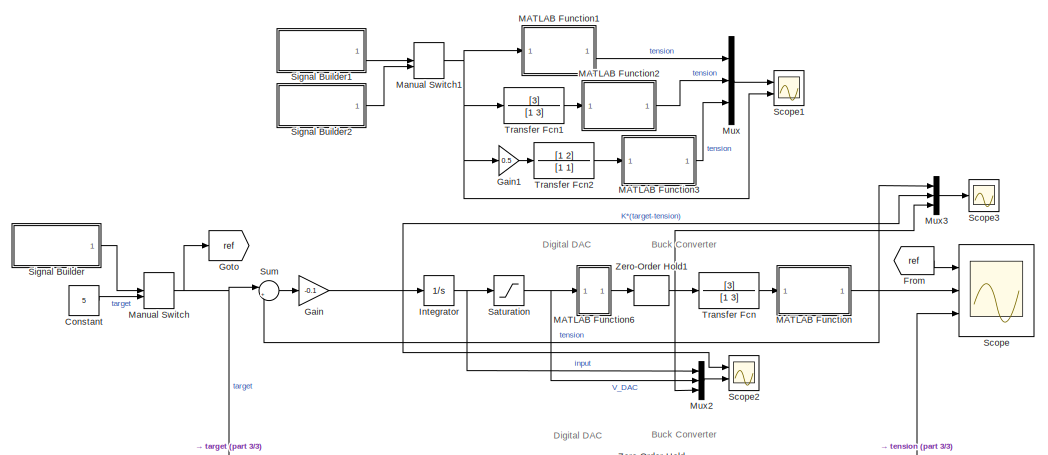
[diagram: root canvas - part 1/3, top left region]
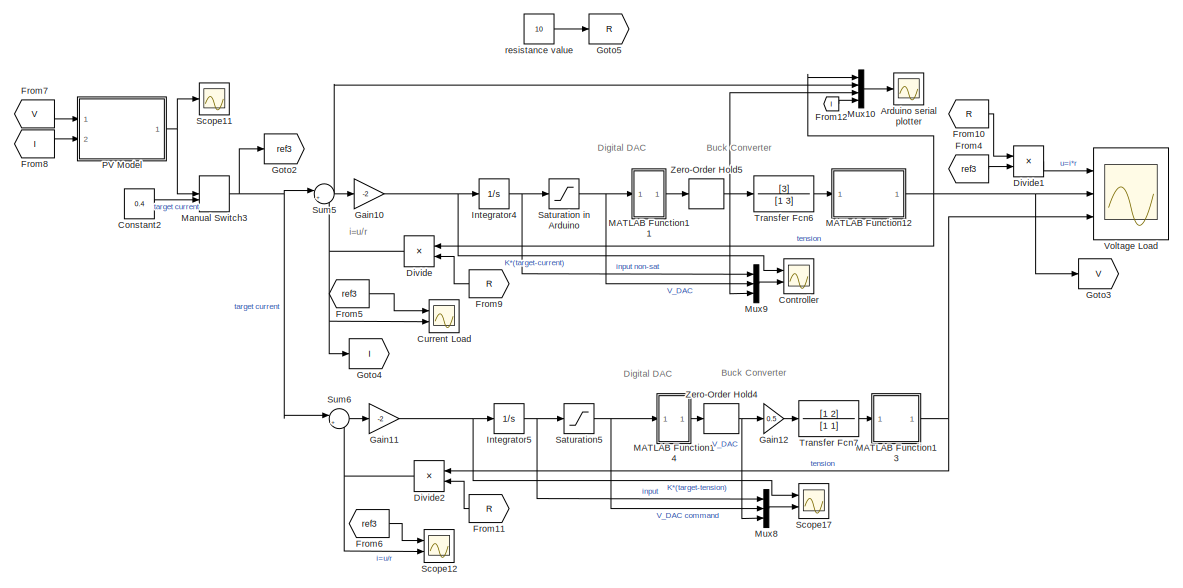
[diagram: root canvas - part 2/3, middle right region]
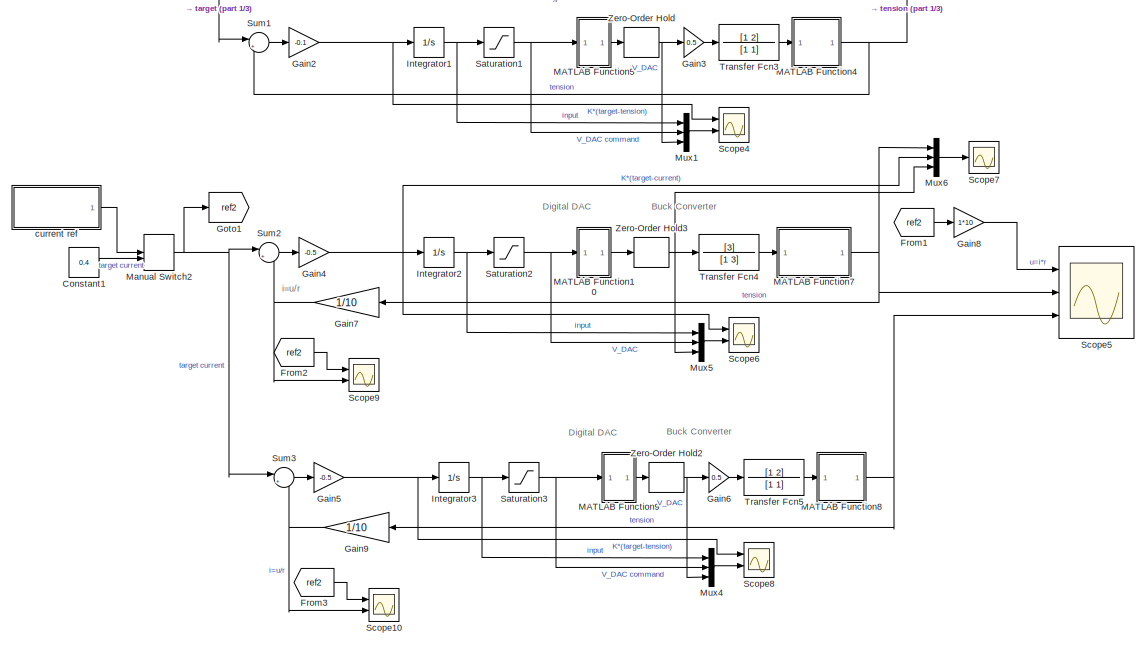
[diagram: root canvas - part 3/3, bottom left region]
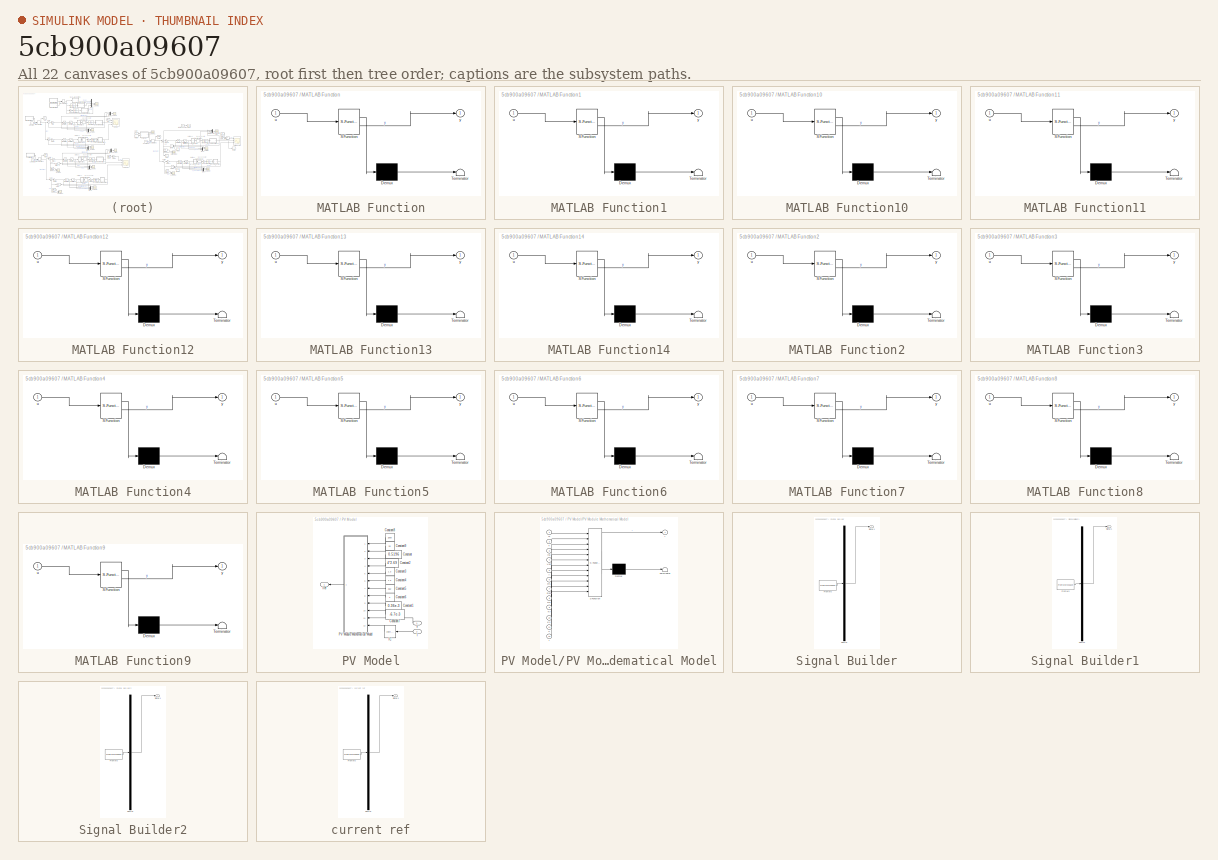
[diagram: thumbnail index - all 22 canvases of the model, root first then tree order]
MODEL slx_5cb900a09607
KIND model
CONFIG AbsTol = auto
CONFIG EnableMultiTasking = off
CONFIG FixedStep = auto
CONFIG MaxStep = auto
CONFIG MinStep = auto
CONFIG RelTol = 1e-3
CONFIG SampleTimeConstraint = Unconstrained
CONFIG SolverName = VariableStepAuto
CONFIG StartTime = 0.0
CONFIG StopTime = 100.0
BLOCK [Scope] Arduino serial plotter
  Floating = off
  NumInputPorts = 1
  Ports = [1]
  ScopeSpecificationString = Simulink.scopes.TimeScopeBlockCfg('CurrentConfiguration', extmgr.ConfigurationSet(extmgr.Configuration('Core','General UI',true),extmgr.Configuration('Core','Source UI',true),extmgr.Configuration('Sources','WiredSimulink',true,'DataLoggingVariableName','ScopeData12'),extmgr.Configuration('Visuals','Time Domain',true,'SerializedDisplays',{struct('MinYLimReal','-3.8','MaxYLimReal','18.2','YLabelReal...<+1877ch>
BLOCK [Constant] Constant
  Value = 5
BLOCK [Constant] Constant1
  Value = 0.4
BLOCK [Constant] Constant2
  Value = 0.4
BLOCK [Scope] Controller
  Floating = off
  NumInputPorts = 2
  Ports = [2]
  ScopeSpecificationString = Simulink.scopes.TimeScopeBlockCfg('CurrentConfiguration', extmgr.ConfigurationSet(extmgr.Configuration('Core','General UI',true),extmgr.Configuration('Core','Source UI',true),extmgr.Configuration('Sources','WiredSimulink',true,'DataLoggingVariableName','ScopeData11'),extmgr.Configuration('Visuals','Time Domain',true,'SerializedDisplays',{struct('MinYLimReal','-0.1','MaxYLimReal','0.9','YLabelReal'...<+2229ch>
BLOCK [Scope] Current Load
  Floating = off
  NumInputPorts = 2
  Ports = [2]
  ScopeSpecificationString = Simulink.scopes.TimeScopeBlockCfg('CurrentConfiguration', extmgr.ConfigurationSet(extmgr.Configuration('Core','General UI',true),extmgr.Configuration('Core','Source UI',true),extmgr.Configuration('Sources','WiredSimulink',true,'DataLoggingVariableName','ScopeData14'),extmgr.Configuration('Visuals','Time Domain',true,'SerializedDisplays',{struct('MinYLimReal','0.50286','MaxYLimReal','0.50479','YLab...<+1462ch>
BLOCK [Product] Divide
  Inputs = */
  NameLocation = top
  Ports = [2, 1]
BLOCK [Product] Divide1
  Inputs = **
  Ports = [2, 1]
BLOCK [Product] Divide2
  Inputs = */
  NameLocation = top
  Ports = [2, 1]
BLOCK [From] From
  GotoTag = ref
BLOCK [From] From1
  GotoTag = ref2
BLOCK [From] From10
  GotoTag = R
BLOCK [From] From11
  GotoTag = R
  NameLocation = top
BLOCK [From] From12
  GotoTag = I
BLOCK [From] From2
  GotoTag = ref2
BLOCK [From] From3
  GotoTag = ref2
BLOCK [From] From4
  GotoTag = ref3
BLOCK [From] From5
  GotoTag = ref3
BLOCK [From] From6
  GotoTag = ref3
BLOCK [From] From7
  GotoTag = V
BLOCK [From] From8
  GotoTag = I
BLOCK [From] From9
  GotoTag = R
  NameLocation = top
BLOCK [Gain] Gain
  Gain = -0.1
BLOCK [Gain] Gain1
  Gain = 0.5
BLOCK [Gain] Gain10
  Gain = -2
BLOCK [Gain] Gain11
  Gain = -2
BLOCK [Gain] Gain12
  Gain = 0.5
BLOCK [Gain] Gain2
  Gain = -0.1
BLOCK [Gain] Gain3
  Gain = 0.5
BLOCK [Gain] Gain4
  Gain = -0.5
BLOCK [Gain] Gain5
  Gain = -0.5
BLOCK [Gain] Gain6
  Gain = 0.5
BLOCK [Gain] Gain7
  Gain = 1/10
  NameLocation = top
BLOCK [Gain] Gain8
  Gain = 1*10
BLOCK [Gain] Gain9
  Gain = 1/10
  NameLocation = top
BLOCK [Goto] Goto
  GotoTag = ref
BLOCK [Goto] Goto1
  GotoTag = ref2
BLOCK [Goto] Goto2
  GotoTag = ref3
BLOCK [Goto] Goto3
  GotoTag = V
BLOCK [Goto] Goto4
  GotoTag = I
BLOCK [Goto] Goto5
  GotoTag = R
BLOCK [Integrator] Integrator
  Ports = [1, 1]
BLOCK [Integrator] Integrator1
  Ports = [1, 1]
BLOCK [Integrator] Integrator2
  Ports = [1, 1]
BLOCK [Integrator] Integrator3
  Ports = [1, 1]
BLOCK [Integrator] Integrator4
  Ports = [1, 1]
BLOCK [Integrator] Integrator5
  Ports = [1, 1]
BLOCK [SubSystem] MATLAB Function
  ErrorFcn = Stateflow.Translate.translate
  PermitHierarchicalResolution = ExplicitOnly
  Ports = [1, 1]
  RequestExecContextInheritance = off
  SFBlockType = MATLAB Function
  TreatAsAtomicUnit = on
BLOCK [Demux] MATLAB Function/ Demux 
  Outputs = 1
  Ports = [1, 1]
BLOCK [S-Function] MATLAB Function/ SFunction 
  EnableBusSupport = on
  FunctionName = sf_sfun
  PortCounts = [1 2]
  Ports = [1, 2]
  SFcnIsStateOwnerBlock = off
  SFunctionDeploymentMode = off
  Tag = Stateflow S-Function 2
BLOCK [Terminator] MATLAB Function/ Terminator 
BLOCK [Inport] MATLAB Function/u
BLOCK [Outport] MATLAB Function/y
BLOCK [SubSystem] MATLAB Function1
  ErrorFcn = Stateflow.Translate.translate
  PermitHierarchicalResolution = ExplicitOnly
  Ports = [1, 1]
  RequestExecContextInheritance = off
  SFBlockType = MATLAB Function
  TreatAsAtomicUnit = on
BLOCK [Demux] MATLAB Function1/ Demux 
  Outputs = 1
  Ports = [1, 1]
BLOCK [S-Function] MATLAB Function1/ SFunction 
  EnableBusSupport = on
  FunctionName = sf_sfun
  PortCounts = [1 2]
  Ports = [1, 2]
  SFcnIsStateOwnerBlock = off
  SFunctionDeploymentMode = off
  Tag = Stateflow S-Function 1
BLOCK [Terminator] MATLAB Function1/ Terminator 
BLOCK [Inport] MATLAB Function1/u
BLOCK [Outport] MATLAB Function1/y
BLOCK [SubSystem] MATLAB Function10
  ErrorFcn = Stateflow.Translate.translate
  PermitHierarchicalResolution = ExplicitOnly
  Ports = [1, 1]
  RequestExecContextInheritance = off
  SFBlockType = MATLAB Function
  TreatAsAtomicUnit = on
BLOCK [Demux] MATLAB Function10/ Demux 
  Outputs = 1
  Ports = [1, 1]
BLOCK [S-Function] MATLAB Function10/ SFunction 
  EnableBusSupport = on
  FunctionName = sf_sfun
  PortCounts = [1 2]
  Ports = [1, 2]
  SFcnIsStateOwnerBlock = off
  SFunctionDeploymentMode = off
  Tag = Stateflow S-Function 8
BLOCK [Terminator] MATLAB Function10/ Terminator 
BLOCK [Inport] MATLAB Function10/u
BLOCK [Outport] MATLAB Function10/y
BLOCK [SubSystem] MATLAB Function11
  ErrorFcn = Stateflow.Translate.translate
  PermitHierarchicalResolution = ExplicitOnly
  Ports = [1, 1]
  RequestExecContextInheritance = off
  SFBlockType = MATLAB Function
  TreatAsAtomicUnit = on
BLOCK [Demux] MATLAB Function11/ Demux 
  Outputs = 1
  Ports = [1, 1]
BLOCK [S-Function] MATLAB Function11/ SFunction 
  EnableBusSupport = on
  FunctionName = sf_sfun
  PortCounts = [1 2]
  Ports = [1, 2]
  SFcnIsStateOwnerBlock = off
  SFunctionDeploymentMode = off
  Tag = Stateflow S-Function 13
BLOCK [Terminator] MATLAB Function11/ Terminator 
BLOCK [Inport] MATLAB Function11/u
BLOCK [Outport] MATLAB Function11/y
BLOCK [SubSystem] MATLAB Function12
  ErrorFcn = Stateflow.Translate.translate
  PermitHierarchicalResolution = ExplicitOnly
  Ports = [1, 1]
  RequestExecContextInheritance = off
  SFBlockType = MATLAB Function
  TreatAsAtomicUnit = on
BLOCK [Demux] MATLAB Function12/ Demux 
  Outputs = 1
  Ports = [1, 1]
BLOCK [S-Function] MATLAB Function12/ SFunction 
  EnableBusSupport = on
  FunctionName = sf_sfun
  PortCounts = [1 2]
  Ports = [1, 2]
  SFcnIsStateOwnerBlock = off
  SFunctionDeploymentMode = off
  Tag = Stateflow S-Function 14
BLOCK [Terminator] MATLAB Function12/ Terminator 
BLOCK [Inport] MATLAB Function12/u
BLOCK [Outport] MATLAB Function12/y
BLOCK [SubSystem] MATLAB Function13
  ErrorFcn = Stateflow.Translate.translate
  PermitHierarchicalResolution = ExplicitOnly
  Ports = [1, 1]
  RequestExecContextInheritance = off
  SFBlockType = MATLAB Function
  TreatAsAtomicUnit = on
BLOCK [Demux] MATLAB Function13/ Demux 
  Outputs = 1
  Ports = [1, 1]
BLOCK [S-Function] MATLAB Function13/ SFunction 
  EnableBusSupport = on
  FunctionName = sf_sfun
  PortCounts = [1 2]
  Ports = [1, 2]
  SFcnIsStateOwnerBlock = off
  SFunctionDeploymentMode = off
  Tag = Stateflow S-Function 15
BLOCK [Terminator] MATLAB Function13/ Terminator 
BLOCK [Inport] MATLAB Function13/u
BLOCK [Outport] MATLAB Function13/y
BLOCK [SubSystem] MATLAB Function14
  ErrorFcn = Stateflow.Translate.translate
  PermitHierarchicalResolution = ExplicitOnly
  Ports = [1, 1]
  RequestExecContextInheritance = off
  SFBlockType = MATLAB Function
  TreatAsAtomicUnit = on
BLOCK [Demux] MATLAB Function14/ Demux 
  Outputs = 1
  Ports = [1, 1]
BLOCK [S-Function] MATLAB Function14/ SFunction 
  EnableBusSupport = on
  FunctionName = sf_sfun
  PortCounts = [1 2]
  Ports = [1, 2]
  SFcnIsStateOwnerBlock = off
  SFunctionDeploymentMode = off
  Tag = Stateflow S-Function 16
BLOCK [Terminator] MATLAB Function14/ Terminator 
BLOCK [Inport] MATLAB Function14/u
BLOCK [Outport] MATLAB Function14/y
BLOCK [SubSystem] MATLAB Function2
  ErrorFcn = Stateflow.Translate.translate
  PermitHierarchicalResolution = ExplicitOnly
  Ports = [1, 1]
  RequestExecContextInheritance = off
  SFBlockType = MATLAB Function
  TreatAsAtomicUnit = on
BLOCK [Demux] MATLAB Function2/ Demux 
  Outputs = 1
  Ports = [1, 1]
BLOCK [S-Function] MATLAB Function2/ SFunction 
  EnableBusSupport = on
  FunctionName = sf_sfun
  PortCounts = [1 2]
  Ports = [1, 2]
  SFcnIsStateOwnerBlock = off
  SFunctionDeploymentMode = off
  Tag = Stateflow S-Function 3
BLOCK [Terminator] MATLAB Function2/ Terminator 
BLOCK [Inport] MATLAB Function2/u
BLOCK [Outport] MATLAB Function2/y
BLOCK [SubSystem] MATLAB Function3
  ErrorFcn = Stateflow.Translate.translate
  PermitHierarchicalResolution = ExplicitOnly
  Ports = [1, 1]
  RequestExecContextInheritance = off
  SFBlockType = MATLAB Function
  TreatAsAtomicUnit = on
BLOCK [Demux] MATLAB Function3/ Demux 
  Outputs = 1
  Ports = [1, 1]
BLOCK [S-Function] MATLAB Function3/ SFunction 
  EnableBusSupport = on
  FunctionName = sf_sfun
  PortCounts = [1 2]
  Ports = [1, 2]
  SFcnIsStateOwnerBlock = off
  SFunctionDeploymentMode = off
  Tag = Stateflow S-Function 4
BLOCK [Terminator] MATLAB Function3/ Terminator 
BLOCK [Inport] MATLAB Function3/u
BLOCK [Outport] MATLAB Function3/y
BLOCK [SubSystem] MATLAB Function4
  ErrorFcn = Stateflow.Translate.translate
  PermitHierarchicalResolution = ExplicitOnly
  Ports = [1, 1]
  RequestExecContextInheritance = off
  SFBlockType = MATLAB Function
  TreatAsAtomicUnit = on
BLOCK [Demux] MATLAB Function4/ Demux 
  Outputs = 1
  Ports = [1, 1]
BLOCK [S-Function] MATLAB Function4/ SFunction 
  EnableBusSupport = on
  FunctionName = sf_sfun
  PortCounts = [1 2]
  Ports = [1, 2]
  SFcnIsStateOwnerBlock = off
  SFunctionDeploymentMode = off
  Tag = Stateflow S-Function 5
BLOCK [Terminator] MATLAB Function4/ Terminator 
BLOCK [Inport] MATLAB Function4/u
BLOCK [Outport] MATLAB Function4/y
BLOCK [SubSystem] MATLAB Function5
  ErrorFcn = Stateflow.Translate.translate
  PermitHierarchicalResolution = ExplicitOnly
  Ports = [1, 1]
  RequestExecContextInheritance = off
  SFBlockType = MATLAB Function
  TreatAsAtomicUnit = on
BLOCK [Demux] MATLAB Function5/ Demux 
  Outputs = 1
  Ports = [1, 1]
BLOCK [S-Function] MATLAB Function5/ SFunction 
  EnableBusSupport = on
  FunctionName = sf_sfun
  PortCounts = [1 2]
  Ports = [1, 2]
  SFcnIsStateOwnerBlock = off
  SFunctionDeploymentMode = off
  Tag = Stateflow S-Function 6
BLOCK [Terminator] MATLAB Function5/ Terminator 
BLOCK [Inport] MATLAB Function5/u
BLOCK [Outport] MATLAB Function5/y
BLOCK [SubSystem] MATLAB Function6
  ErrorFcn = Stateflow.Translate.translate
  PermitHierarchicalResolution = ExplicitOnly
  Ports = [1, 1]
  RequestExecContextInheritance = off
  SFBlockType = MATLAB Function
  TreatAsAtomicUnit = on
BLOCK [Demux] MATLAB Function6/ Demux 
  Outputs = 1
  Ports = [1, 1]
BLOCK [S-Function] MATLAB Function6/ SFunction 
  EnableBusSupport = on
  FunctionName = sf_sfun
  PortCounts = [1 2]
  Ports = [1, 2]
  SFcnIsStateOwnerBlock = off
  SFunctionDeploymentMode = off
  Tag = Stateflow S-Function 7
BLOCK [Terminator] MATLAB Function6/ Terminator 
BLOCK [Inport] MATLAB Function6/u
BLOCK [Outport] MATLAB Function6/y
BLOCK [SubSystem] MATLAB Function7
  ErrorFcn = Stateflow.Translate.translate
  PermitHierarchicalResolution = ExplicitOnly
  Ports = [1, 1]
  RequestExecContextInheritance = off
  SFBlockType = MATLAB Function
  TreatAsAtomicUnit = on
BLOCK [Demux] MATLAB Function7/ Demux 
  Outputs = 1
  Ports = [1, 1]
BLOCK [S-Function] MATLAB Function7/ SFunction 
  EnableBusSupport = on
  FunctionName = sf_sfun
  PortCounts = [1 2]
  Ports = [1, 2]
  SFcnIsStateOwnerBlock = off
  SFunctionDeploymentMode = off
  Tag = Stateflow S-Function 9
BLOCK [Terminator] MATLAB Function7/ Terminator 
BLOCK [Inport] MATLAB Function7/u
BLOCK [Outport] MATLAB Function7/y
BLOCK [SubSystem] MATLAB Function8
  ErrorFcn = Stateflow.Translate.translate
  PermitHierarchicalResolution = ExplicitOnly
  Ports = [1, 1]
  RequestExecContextInheritance = off
  SFBlockType = MATLAB Function
  TreatAsAtomicUnit = on
BLOCK [Demux] MATLAB Function8/ Demux 
  Outputs = 1
  Ports = [1, 1]
BLOCK [S-Function] MATLAB Function8/ SFunction 
  EnableBusSupport = on
  FunctionName = sf_sfun
  PortCounts = [1 2]
  Ports = [1, 2]
  SFcnIsStateOwnerBlock = off
  SFunctionDeploymentMode = off
  Tag = Stateflow S-Function 10
BLOCK [Terminator] MATLAB Function8/ Terminator 
BLOCK [Inport] MATLAB Function8/u
BLOCK [Outport] MATLAB Function8/y
BLOCK [SubSystem] MATLAB Function9
  ErrorFcn = Stateflow.Translate.translate
  PermitHierarchicalResolution = ExplicitOnly
  Ports = [1, 1]
  RequestExecContextInheritance = off
  SFBlockType = MATLAB Function
  TreatAsAtomicUnit = on
BLOCK [Demux] MATLAB Function9/ Demux 
  Outputs = 1
  Ports = [1, 1]
BLOCK [S-Function] MATLAB Function9/ SFunction 
  EnableBusSupport = on
  FunctionName = sf_sfun
  PortCounts = [1 2]
  Ports = [1, 2]
  SFcnIsStateOwnerBlock = off
  SFunctionDeploymentMode = off
  Tag = Stateflow S-Function 11
BLOCK [Terminator] MATLAB Function9/ Terminator 
BLOCK [Inport] MATLAB Function9/u
BLOCK [Outport] MATLAB Function9/y
BLOCK [ManualSwitch] Manual Switch
BLOCK [ManualSwitch] Manual Switch1
BLOCK [ManualSwitch] Manual Switch2
  CurrentSetting = 0
BLOCK [ManualSwitch] Manual Switch3
BLOCK [Mux] Mux
  DisplayOption = bar
  Inputs = 3
  Ports = [3, 1]
BLOCK [Mux] Mux1
  DisplayOption = bar
  Inputs = 3
  Ports = [3, 1]
BLOCK [Mux] Mux10
  DisplayOption = bar
  Ports = [4, 1]
BLOCK [Mux] Mux2
  DisplayOption = bar
  Inputs = 3
  Ports = [3, 1]
BLOCK [Mux] Mux3
  DisplayOption = bar
  Inputs = 3
  Ports = [3, 1]
BLOCK [Mux] Mux4
  DisplayOption = bar
  Inputs = 3
  Ports = [3, 1]
BLOCK [Mux] Mux5
  DisplayOption = bar
  Inputs = 3
  Ports = [3, 1]
BLOCK [Mux] Mux6
  DisplayOption = bar
  Inputs = 3
  Ports = [3, 1]
BLOCK [Mux] Mux8
  DisplayOption = bar
  Inputs = 3
  Ports = [3, 1]
BLOCK [Mux] Mux9
  DisplayOption = bar
  Inputs = 3
  Ports = [3, 1]
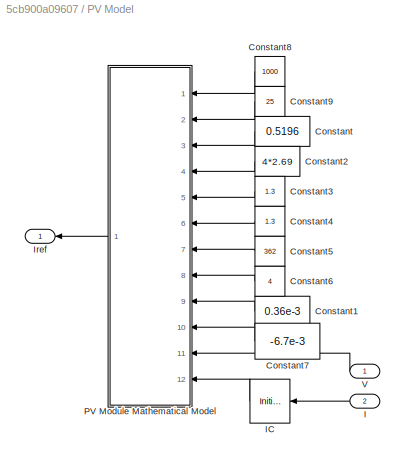
BLOCK [SubSystem] PV Model
  Ports = [2, 1]
  RequestExecContextInheritance = off
BLOCK [Constant] PV Model/Constant
  Value = 0.5196
BLOCK [Constant] PV Model/Constant1
  Value = 0.36e-3
BLOCK [Constant] PV Model/Constant2
  Value = 4*2.69
BLOCK [Constant] PV Model/Constant3
  Value = 1.3
BLOCK [Constant] PV Model/Constant4
  Value = 1.3
BLOCK [Constant] PV Model/Constant5
  Value = 362
BLOCK [Constant] PV Model/Constant6
  Value = 4
BLOCK [Constant] PV Model/Constant7
  Value = -6.7e-3
BLOCK [Constant] PV Model/Constant8
  Value = 1000
BLOCK [Constant] PV Model/Constant9
  Value = 25
BLOCK [Inport] PV Model/I
  Port = 2
BLOCK [InitialCondition] PV Model/IC
  Value = 0
BLOCK [Outport] PV Model/Iref
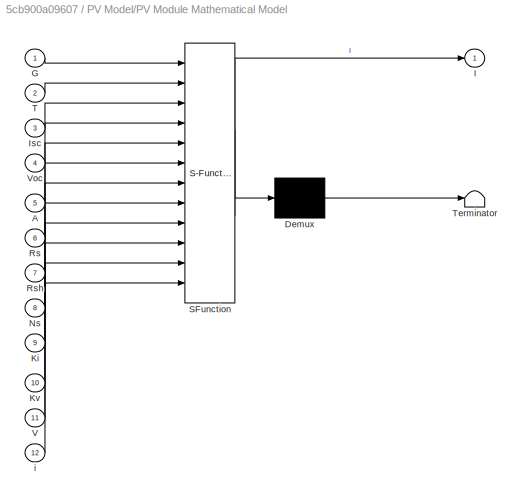
BLOCK [SubSystem] PV Model/PV Module Mathematical Model
  ErrorFcn = Stateflow.Translate.translate
  PermitHierarchicalResolution = ExplicitOnly
  Ports = [12, 1]
  RequestExecContextInheritance = off
  SFBlockType = MATLAB Function
  TreatAsAtomicUnit = on
BLOCK [Demux] PV Model/PV Module Mathematical Model/ Demux 
  Outputs = 1
  Ports = [1, 1]
BLOCK [S-Function] PV Model/PV Module Mathematical Model/ SFunction 
  EnableBusSupport = on
  FunctionName = sf_sfun
  PortCounts = [12 2]
  Ports = [12, 2]
  SFcnIsStateOwnerBlock = off
  SFunctionDeploymentMode = off
  Tag = Stateflow S-Function 12
BLOCK [Terminator] PV Model/PV Module Mathematical Model/ Terminator 
BLOCK [Inport] PV Model/PV Module Mathematical Model/A
  Port = 5
BLOCK [Inport] PV Model/PV Module Mathematical Model/G
BLOCK [Outport] PV Model/PV Module Mathematical Model/I
  VectorParamsAs1DForOutWhenUnconnected = off
BLOCK [Inport] PV Model/PV Module Mathematical Model/Isc
  Port = 3
BLOCK [Inport] PV Model/PV Module Mathematical Model/Ki
  Port = 9
BLOCK [Inport] PV Model/PV Module Mathematical Model/Kv
  Port = 10
BLOCK [Inport] PV Model/PV Module Mathematical Model/Ns
  Port = 8
BLOCK [Inport] PV Model/PV Module Mathematical Model/Rs
  Port = 6
BLOCK [Inport] PV Model/PV Module Mathematical Model/Rsh
  Port = 7
BLOCK [Inport] PV Model/PV Module Mathematical Model/T
  Port = 2
BLOCK [Inport] PV Model/PV Module Mathematical Model/V
  Port = 11
BLOCK [Inport] PV Model/PV Module Mathematical Model/Voc
  Port = 4
BLOCK [Inport] PV Model/PV Module Mathematical Model/i
  Port = 12
BLOCK [Inport] PV Model/V
BLOCK [Saturate] Saturation
  LowerLimit = 1
  UpperLimit = 5
BLOCK [Saturate] Saturation in Arduino
  LowerLimit = 0.2
  UpperLimit = 4.8
BLOCK [Saturate] Saturation1
  LowerLimit = 1
  UpperLimit = 5
BLOCK [Saturate] Saturation2
  LowerLimit = 1
  UpperLimit = 5
BLOCK [Saturate] Saturation3
  LowerLimit = 1
  UpperLimit = 5
BLOCK [Saturate] Saturation5
  LowerLimit = 0.2
  UpperLimit = 4.8
BLOCK [Scope] Scope
  Floating = off
  NumInputPorts = 3
  Ports = [3]
  ScopeSpecificationString = Simulink.scopes.TimeScopeBlockCfg('CurrentConfiguration', extmgr.ConfigurationSet(extmgr.Configuration('Core','General UI',true),extmgr.Configuration('Core','Source UI',true),extmgr.Configuration('Sources','WiredSimulink',true),extmgr.Configuration('Visuals','Time Domain',true,'SerializedDisplays',{struct('MinYLimReal','-2.0225','MaxYLimReal','18.0025','YLabelReal','','MinYLimMag','0.00000','MaxYL...<+1569ch>
BLOCK [Scope] Scope1
  Floating = off
  NumInputPorts = 2
  Ports = [2]
  ScopeSpecificationString = Simulink.scopes.TimeScopeBlockCfg('CurrentConfiguration', extmgr.ConfigurationSet(extmgr.Configuration('Core','General UI',true),extmgr.Configuration('Core','Source UI',true),extmgr.Configuration('Sources','WiredSimulink',true,'DataLoggingVariableName','ScopeData1'),extmgr.Configuration('Visuals','Time Domain',true,'SerializedDisplays',{struct('MinYLimReal','-0.87038','MaxYLimReal','18.39388','YLa...<+2210ch>
BLOCK [Scope] Scope10
  Floating = off
  NumInputPorts = 2
  Ports = [2]
  ScopeSpecificationString = Simulink.scopes.TimeScopeBlockCfg('CurrentConfiguration', extmgr.ConfigurationSet(extmgr.Configuration('Core','General UI',true),extmgr.Configuration('Core','Source UI',true),extmgr.Configuration('Sources','WiredSimulink',true,'DataLoggingVariableName','ScopeData6'),extmgr.Configuration('Visuals','Time Domain',true,'SerializedDisplays',{struct('MinYLimReal','0.26836','MaxYLimReal','1.58455','YLabe...<+1381ch>
BLOCK [Scope] Scope11
  Floating = off
  NumInputPorts = 1
  Ports = [1]
  ScopeSpecificationString = Simulink.scopes.TimeScopeBlockCfg('CurrentConfiguration', extmgr.ConfigurationSet(extmgr.Configuration('Core','General UI',true),extmgr.Configuration('Core','Source UI',true),extmgr.Configuration('Sources','WiredSimulink',true,'DataLoggingVariableName','ScopeData7'),extmgr.Configuration('Visuals','Time Domain',true,'SerializedDisplays',{struct('MinYLimReal','0.50349','MaxYLimReal','0.50425','YLabe...<+1436ch>
BLOCK [Scope] Scope12
  Floating = off
  NumInputPorts = 2
  Ports = [2]
  ScopeSpecificationString = Simulink.scopes.TimeScopeBlockCfg('CurrentConfiguration', extmgr.ConfigurationSet(extmgr.Configuration('Core','General UI',true),extmgr.Configuration('Core','Source UI',true),extmgr.Configuration('Sources','WiredSimulink',true,'DataLoggingVariableName','ScopeData8'),extmgr.Configuration('Visuals','Time Domain',true,'SerializedDisplays',{struct('MinYLimReal','-0.18162','MaxYLimReal','1.63455','YLab...<+1383ch>
BLOCK [Scope] Scope17
  Floating = off
  NumInputPorts = 2
  Ports = [2]
  ScopeSpecificationString = Simulink.scopes.TimeScopeBlockCfg('CurrentConfiguration', extmgr.ConfigurationSet(extmgr.Configuration('Core','General UI',true),extmgr.Configuration('Core','Source UI',true),extmgr.Configuration('Sources','WiredSimulink',true,'DataLoggingVariableName','ScopeData13'),extmgr.Configuration('Visuals','Time Domain',true,'SerializedDisplays',{struct('MinYLimReal','-0.13575','MaxYLimReal','1.51834','YLa...<+2198ch>
BLOCK [Scope] Scope2
  Floating = off
  NumInputPorts = 2
  Ports = [2]
  ScopeSpecificationString = Simulink.scopes.TimeScopeBlockCfg('CurrentConfiguration', extmgr.ConfigurationSet(extmgr.Configuration('Core','General UI',true),extmgr.Configuration('Core','Source UI',true),extmgr.Configuration('Sources','WiredSimulink',true,'DataLoggingVariableName','ScopeData1'),extmgr.Configuration('Visuals','Time Domain',true,'SerializedDisplays',{struct('MinYLimReal','-0.05413','MaxYLimReal','1.78379','YLab...<+2242ch>
BLOCK [Scope] Scope3
  Floating = off
  NumInputPorts = 1
  Ports = [1]
  ScopeSpecificationString = Simulink.scopes.TimeScopeBlockCfg('CurrentConfiguration', extmgr.ConfigurationSet(extmgr.Configuration('Core','General UI',true),extmgr.Configuration('Core','Source UI',true),extmgr.Configuration('Sources','WiredSimulink',true,'DataLoggingVariableName','ScopeData1'),extmgr.Configuration('Visuals','Time Domain',true,'SerializedDisplays',{struct('MinYLimReal','-2.00001','MaxYLimReal','18.00000','YLa...<+1559ch>
BLOCK [Scope] Scope4
  Floating = off
  NumInputPorts = 2
  Ports = [2]
  ScopeSpecificationString = Simulink.scopes.TimeScopeBlockCfg('CurrentConfiguration', extmgr.ConfigurationSet(extmgr.Configuration('Core','General UI',true),extmgr.Configuration('Core','Source UI',true),extmgr.Configuration('Sources','WiredSimulink',true,'DataLoggingVariableName','ScopeData4'),extmgr.Configuration('Visuals','Time Domain',true,'SerializedDisplays',{struct('MinYLimReal','-0.13575','MaxYLimReal','1.51834','YLab...<+2199ch>
BLOCK [Scope] Scope5
  Floating = off
  NumInputPorts = 3
  Ports = [3]
  ScopeSpecificationString = Simulink.scopes.TimeScopeBlockCfg('CurrentConfiguration', extmgr.ConfigurationSet(extmgr.Configuration('Core','General UI',true),extmgr.Configuration('Core','Source UI',true),extmgr.Configuration('Sources','WiredSimulink',true,'DataLoggingVariableName','ScopeData1'),extmgr.Configuration('Visuals','Time Domain',true,'SerializedDisplays',{struct('MinYLimReal','-2.00000','MaxYLimReal','18.00000','YLa...<+1614ch>
BLOCK [Scope] Scope6
  Floating = off
  NumInputPorts = 2
  Ports = [2]
  ScopeSpecificationString = Simulink.scopes.TimeScopeBlockCfg('CurrentConfiguration', extmgr.ConfigurationSet(extmgr.Configuration('Core','General UI',true),extmgr.Configuration('Core','Source UI',true),extmgr.Configuration('Sources','WiredSimulink',true,'DataLoggingVariableName','ScopeData2'),extmgr.Configuration('Visuals','Time Domain',true,'SerializedDisplays',{struct('MinYLimReal','-2.17795','MaxYLimReal','1.13088','YLab...<+2242ch>
BLOCK [Scope] Scope7
  Floating = off
  NumInputPorts = 1
  Ports = [1]
  ScopeSpecificationString = Simulink.scopes.TimeScopeBlockCfg('CurrentConfiguration', extmgr.ConfigurationSet(extmgr.Configuration('Core','General UI',true),extmgr.Configuration('Core','Source UI',true),extmgr.Configuration('Sources','WiredSimulink',true,'DataLoggingVariableName','ScopeData3'),extmgr.Configuration('Visuals','Time Domain',true,'SerializedDisplays',{struct('MinYLimReal','-2.00001','MaxYLimReal','18.00000','YLa...<+1570ch>
BLOCK [Scope] Scope8
  Floating = off
  NumInputPorts = 2
  Ports = [2]
  ScopeSpecificationString = Simulink.scopes.TimeScopeBlockCfg('CurrentConfiguration', extmgr.ConfigurationSet(extmgr.Configuration('Core','General UI',true),extmgr.Configuration('Core','Source UI',true),extmgr.Configuration('Sources','WiredSimulink',true,'DataLoggingVariableName','ScopeData4'),extmgr.Configuration('Visuals','Time Domain',true,'SerializedDisplays',{struct('MinYLimReal','-0.13575','MaxYLimReal','1.51834','YLab...<+2197ch>
BLOCK [Scope] Scope9
  Floating = off
  NumInputPorts = 2
  Ports = [2]
  ScopeSpecificationString = Simulink.scopes.TimeScopeBlockCfg('CurrentConfiguration', extmgr.ConfigurationSet(extmgr.Configuration('Core','General UI',true),extmgr.Configuration('Core','Source UI',true),extmgr.Configuration('Sources','WiredSimulink',true,'DataLoggingVariableName','ScopeData5'),extmgr.Configuration('Visuals','Time Domain',true,'SerializedDisplays',{struct('MinYLimReal','0.399973','MaxYLimReal','0.400026','YLa...<+1469ch>
BLOCK [SubSystem] Signal Builder
  ClipboardFcn = sigbuilder_block('clipboard');
  CloseFcn = sigbuilder_block('close');
  ContinueFcn = sigbuilder_block('continue');
  CopyFcn = sigbuilder_block('copy');
  DeleteFcn = sigbuilder_block('delete');
  LoadFcn = sigbuilder_block('load');
  MaskHideContents = on
  ModelCloseFcn = sigbuilder_block('modelClose');
  NameChangeFcn = sigbuilder_block('namechange');
  OpenFcn = sigbuilder_block('open',[337.5 87.75 550.5 399.75 ]);
  PauseFcn = sigbuilder_block('pause');
  Ports = [0, 1]
  PreSaveFcn = sigbuilder_block('preSave');
  RequestExecContextInheritance = off
  StartFcn = sigbuilder_block('start');
  StopFcn = sigbuilder_block('stop');
  Tag = STV Subsys
BLOCK [Demux] Signal Builder/Demux
  DisplayOption = none
  Outputs = 1
  Ports = [1, 1]
  Tag = STV Demux
BLOCK [FromWorkspace] Signal Builder/FromWs
  Tag = STV FromWs
  VariableName = tuvar
BLOCK [Outport] Signal Builder/Signal 1
  Tag = STV Outport
BLOCK [SubSystem] Signal Builder1
  ClipboardFcn = sigbuilder_block('clipboard');
  CloseFcn = sigbuilder_block('close');
  ContinueFcn = sigbuilder_block('continue');
  CopyFcn = sigbuilder_block('copy');
  DeleteFcn = sigbuilder_block('delete');
  LoadFcn = sigbuilder_block('load');
  MaskHideContents = on
  ModelCloseFcn = sigbuilder_block('modelClose');
  NameChangeFcn = sigbuilder_block('namechange');
  OpenFcn = sigbuilder_block('open',[437.6 199.2 550.4 400 ]);
  PauseFcn = sigbuilder_block('pause');
  Ports = [0, 1]
  PreSaveFcn = sigbuilder_block('preSave');
  RequestExecContextInheritance = off
  StartFcn = sigbuilder_block('start');
  StopFcn = sigbuilder_block('stop');
  Tag = STV Subsys
BLOCK [Demux] Signal Builder1/Demux
  DisplayOption = none
  Outputs = 1
  Ports = [1, 1]
  Tag = STV Demux
BLOCK [FromWorkspace] Signal Builder1/FromWs
  Tag = STV FromWs
  VariableName = tuvar
BLOCK [Outport] Signal Builder1/Signal 1
  Tag = STV Outport
BLOCK [SubSystem] Signal Builder2
  ClipboardFcn = sigbuilder_block('clipboard');
  CloseFcn = sigbuilder_block('close');
  ContinueFcn = sigbuilder_block('continue');
  CopyFcn = sigbuilder_block('copy');
  DeleteFcn = sigbuilder_block('delete');
  LoadFcn = sigbuilder_block('load');
  MaskHideContents = on
  ModelCloseFcn = sigbuilder_block('modelClose');
  NameChangeFcn = sigbuilder_block('namechange');
  OpenFcn = sigbuilder_block('open',[337.5 87.75 550.5 399.75 ]);
  PauseFcn = sigbuilder_block('pause');
  Ports = [0, 1]
  PreSaveFcn = sigbuilder_block('preSave');
  RequestExecContextInheritance = off
  StartFcn = sigbuilder_block('start');
  StopFcn = sigbuilder_block('stop');
  Tag = STV Subsys
BLOCK [Demux] Signal Builder2/Demux
  DisplayOption = none
  Outputs = 1
  Ports = [1, 1]
  Tag = STV Demux
BLOCK [FromWorkspace] Signal Builder2/FromWs
  Tag = STV FromWs
  VariableName = tuvar
BLOCK [Outport] Signal Builder2/Signal 1
  Tag = STV Outport
BLOCK [Sum] Sum
  Inputs = |+-
  Ports = [2, 1]
BLOCK [Sum] Sum1
  Inputs = |+-
  Ports = [2, 1]
BLOCK [Sum] Sum2
  Inputs = |+-
  Ports = [2, 1]
BLOCK [Sum] Sum3
  Inputs = |+-
  Ports = [2, 1]
BLOCK [Sum] Sum5
  Inputs = |+-
  Ports = [2, 1]
BLOCK [Sum] Sum6
  Inputs = |+-
  Ports = [2, 1]
BLOCK [TransferFcn] Transfer Fcn
  Denominator = [1 3]
  Numerator = [3]
BLOCK [TransferFcn] Transfer Fcn1
  Denominator = [1 3]
  Numerator = [3]
BLOCK [TransferFcn] Transfer Fcn2
  Denominator = [1 1]
  Numerator = [1 2]
BLOCK [TransferFcn] Transfer Fcn3
  Denominator = [1 1]
  Numerator = [1 2]
BLOCK [TransferFcn] Transfer Fcn4
  Denominator = [1 3]
  Numerator = [3]
BLOCK [TransferFcn] Transfer Fcn5
  Denominator = [1 1]
  Numerator = [1 2]
BLOCK [TransferFcn] Transfer Fcn6
  Denominator = [1 3]
  Numerator = [3]
BLOCK [TransferFcn] Transfer Fcn7
  Denominator = [1 1]
  Numerator = [1 2]
BLOCK [Scope] Voltage Load
  Floating = off
  NumInputPorts = 3
  Ports = [3]
  ScopeSpecificationString = Simulink.scopes.TimeScopeBlockCfg('CurrentConfiguration', extmgr.ConfigurationSet(extmgr.Configuration('Core','General UI',true),extmgr.Configuration('Core','Source UI',true),extmgr.Configuration('Sources','WiredSimulink',true,'DataLoggingVariableName','ScopeData10'),extmgr.Configuration('Visuals','Time Domain',true,'SerializedDisplays',{struct('MinYLimReal','-2.00000','MaxYLimReal','18.00000','YL...<+1641ch>
BLOCK [ZeroOrderHold] Zero-Order Hold
  SampleTime = 0.05
BLOCK [ZeroOrderHold] Zero-Order Hold1
  SampleTime = 0.05
BLOCK [ZeroOrderHold] Zero-Order Hold2
  SampleTime = 0.05
BLOCK [ZeroOrderHold] Zero-Order Hold3
  SampleTime = 0.05
BLOCK [ZeroOrderHold] Zero-Order Hold4
  SampleTime = 0.05
BLOCK [ZeroOrderHold] Zero-Order Hold5
  SampleTime = 0.05
BLOCK [SubSystem] current ref
  ClipboardFcn = sigbuilder_block('clipboard');
  CloseFcn = sigbuilder_block('close');
  ContinueFcn = sigbuilder_block('continue');
  CopyFcn = sigbuilder_block('copy');
  DeleteFcn = sigbuilder_block('delete');
  LoadFcn = sigbuilder_block('load');
  MaskHideContents = on
  ModelCloseFcn = sigbuilder_block('modelClose');
  NameChangeFcn = sigbuilder_block('namechange');
  OpenFcn = sigbuilder_block('open',[5.4 30 1141.2 594.6 ]);
  PauseFcn = sigbuilder_block('pause');
  Ports = [0, 1]
  PreSaveFcn = sigbuilder_block('preSave');
  RequestExecContextInheritance = off
  StartFcn = sigbuilder_block('start');
  StopFcn = sigbuilder_block('stop');
  Tag = STV Subsys
BLOCK [Demux] current ref/Demux
  DisplayOption = none
  Outputs = 1
  Ports = [1, 1]
  Tag = STV Demux
BLOCK [FromWorkspace] current ref/FromWs
  Tag = STV FromWs
  VariableName = tuvar
BLOCK [Outport] current ref/Signal 1
  Tag = STV Outport
BLOCK [Constant] resistance value
  Value = 10
ANNOTATION (root): Buck Converter
ANNOTATION (root): Digital DAC
ANNOTATION (root): i=u/r
LINE Constant1:1 -> Manual Switch2:2
LINE Constant2:1 -> Manual Switch3:2
LINE Constant:1 -> Manual Switch:2
LINE Divide1:1 -> Voltage Load:1
NET Divide2:1 -> Scope12:2, Sum6:2
NET Divide:1 -> Current Load:2, Goto4:1, Sum5:2
LINE From10:1 -> Divide1:1
LINE From11:1 -> Divide2:2
LINE From12:1 -> Mux10:4
LINE From1:1 -> Gain8:1
LINE From2:1 -> Scope9:1
LINE From3:1 -> Scope10:1
LINE From4:1 -> Divide1:2
LINE From5:1 -> Current Load:1
LINE From6:1 -> Scope12:1
LINE From7:1 -> PV Model:1
LINE From8:1 -> PV Model:2
LINE From9:1 -> Divide:2
LINE From:1 -> Scope:1
NET Gain10:1 -> Controller:1, Integrator4:1
NET Gain11:1 -> Integrator5:1, Scope17:1
LINE Gain12:1 -> Transfer Fcn7:1
LINE Gain1:1 -> Transfer Fcn2:1
NET Gain2:1 -> Integrator1:1, Scope4:1
LINE Gain3:1 -> Transfer Fcn3:1
NET Gain4:1 -> Integrator2:1, Mux6:2, Scope6:1
NET Gain5:1 -> Integrator3:1, Scope8:1
LINE Gain6:1 -> Transfer Fcn5:1
NET Gain7:1 -> Scope9:2, Sum2:2
LINE Gain8:1 -> Scope5:1
NET Gain9:1 -> Scope10:2, Sum3:2
NET Gain:1 -> Integrator:1, Mux3:2, Scope2:1
NET Integrator1:1 -> Mux1:1, Saturation1:1
NET Integrator2:1 -> Mux5:1, Saturation2:1
NET Integrator3:1 -> Mux4:1, Saturation3:1
NET Integrator4:1 -> Mux9:1, Saturation in Arduino:1
NET Integrator5:1 -> Mux8:1, Saturation5:1
NET Integrator:1 -> Mux2:1, Saturation:1
LINE MATLAB Function10:1 -> Zero-Order Hold3:1
LINE MATLAB Function11:1 -> Zero-Order Hold5:1
NET MATLAB Function12:1 -> Divide:1, Goto3:1, Mux10:1, Voltage Load:2
NET MATLAB Function13:1 -> Divide2:1, Voltage Load:3
LINE MATLAB Function14:1 -> Zero-Order Hold4:1
LINE MATLAB Function1:1 -> Mux:1
LINE MATLAB Function2:1 -> Mux:2
LINE MATLAB Function3:1 -> Mux:3
NET MATLAB Function4:1 -> Scope:3, Sum1:2
LINE MATLAB Function5:1 -> Zero-Order Hold:1
LINE MATLAB Function6:1 -> Zero-Order Hold1:1
NET MATLAB Function7:1 -> Gain7:1, Mux6:1, Scope5:2
NET MATLAB Function8:1 -> Gain9:1, Scope5:3
LINE MATLAB Function9:1 -> Zero-Order Hold2:1
NET MATLAB Function:1 -> Mux3:1, Scope:2, Sum:2
NET Manual Switch1:1 -> Gain1:1, MATLAB Function1:1, Scope1:2, Transfer Fcn1:1
NET Manual Switch2:1 -> Goto1:1, Sum2:1, Sum3:1
NET Manual Switch3:1 -> Goto2:1, Sum5:1, Sum6:1
NET Manual Switch:1 -> Goto:1, Sum1:1, Sum:1
LINE Mux10:1 -> Arduino serial plotter:1
LINE Mux1:1 -> Scope4:2
LINE Mux2:1 -> Scope2:2
LINE Mux3:1 -> Scope3:1
LINE Mux4:1 -> Scope8:2
LINE Mux5:1 -> Scope6:2
LINE Mux6:1 -> Scope7:1
LINE Mux8:1 -> Scope17:2
LINE Mux9:1 -> Controller:2
LINE Mux:1 -> Scope1:1
LINE PV Model/Constant1:1 -> PV Model/PV Module Mathematical Model:9
LINE PV Model/Constant2:1 -> PV Model/PV Module Mathematical Model:4
LINE PV Model/Constant3:1 -> PV Model/PV Module Mathematical Model:5
LINE PV Model/Constant4:1 -> PV Model/PV Module Mathematical Model:6
LINE PV Model/Constant5:1 -> PV Model/PV Module Mathematical Model:7
LINE PV Model/Constant6:1 -> PV Model/PV Module Mathematical Model:8
LINE PV Model/Constant7:1 -> PV Model/PV Module Mathematical Model:10
LINE PV Model/Constant8:1 -> PV Model/PV Module Mathematical Model:1
LINE PV Model/Constant9:1 -> PV Model/PV Module Mathematical Model:2
LINE PV Model/Constant:1 -> PV Model/PV Module Mathematical Model:3
LINE PV Model/I:1 -> PV Model/IC:1
LINE PV Model/IC:1 -> PV Model/PV Module Mathematical Model:12
LINE PV Model/PV Module Mathematical Model:1 -> PV Model/Iref:1
LINE PV Model/V:1 -> PV Model/PV Module Mathematical Model:11
NET PV Model:1 -> Manual Switch3:1, Scope11:1
NET Saturation in Arduino:1 -> MATLAB Function11:1, Mux9:2
NET Saturation1:1 -> MATLAB Function5:1, Mux1:2
NET Saturation2:1 -> MATLAB Function10:1, Mux5:2
NET Saturation3:1 -> MATLAB Function9:1, Mux4:2
NET Saturation5:1 -> MATLAB Function14:1, Mux8:2
NET Saturation:1 -> MATLAB Function6:1, Mux2:2
LINE Signal Builder1:1 -> Manual Switch1:1
LINE Signal Builder2:1 -> Manual Switch1:2
LINE Signal Builder:1 -> Manual Switch:1
LINE Sum1:1 -> Gain2:1
LINE Sum2:1 -> Gain4:1
LINE Sum3:1 -> Gain5:1
NET Sum5:1 -> Gain10:1, Mux10:2
LINE Sum6:1 -> Gain11:1
LINE Sum:1 -> Gain:1
LINE Transfer Fcn1:1 -> MATLAB Function2:1
LINE Transfer Fcn2:1 -> MATLAB Function3:1
LINE Transfer Fcn3:1 -> MATLAB Function4:1
LINE Transfer Fcn4:1 -> MATLAB Function7:1
LINE Transfer Fcn5:1 -> MATLAB Function8:1
LINE Transfer Fcn6:1 -> MATLAB Function12:1
LINE Transfer Fcn7:1 -> MATLAB Function13:1
LINE Transfer Fcn:1 -> MATLAB Function:1
NET Zero-Order Hold1:1 -> Mux2:3, Mux3:3, Transfer Fcn:1
NET Zero-Order Hold2:1 -> Gain6:1, Mux4:3
NET Zero-Order Hold3:1 -> Mux5:3, Mux6:3, Transfer Fcn4:1
NET Zero-Order Hold4:1 -> Gain12:1, Mux8:3
NET Zero-Order Hold5:1 -> Mux10:3, Mux9:3, Transfer Fcn6:1
NET Zero-Order Hold:1 -> Gain3:1, Mux1:3
LINE current ref:1 -> Manual Switch2:1
LINE resistance value:1 -> Goto5:1
note: NET lines group one-source signal fan-out (src -> all destinations, sorted); 1:1 wires keep LINE
CHART MATLAB Function11 states=1 transitions=1
  STATE_LABEL 'eML_blk_kernel()'
  STATE_LABEL 'SCRIPT:\nfunction y = fcn(u)\nedges=0:1/4095:5;\ny = discretize(u,edges)/4096;\n'
CHART MATLAB Function12 states=1 transitions=1
  STATE_LABEL 'eML_blk_kernel()'
  STATE_LABEL 'SCRIPT:\nfunction y = fcn(u)\n\ny = 16-2.9414*u;\n'
CHART MATLAB Function13 states=1 transitions=1
  STATE_LABEL 'eML_blk_kernel()'
  STATE_LABEL 'SCRIPT:\nfunction y = fcn(u)\n\ny = 16-2.9414*u;\n'
CHART MATLAB Function14 states=1 transitions=1
  STATE_LABEL 'eML_blk_kernel()'
  STATE_LABEL 'SCRIPT:\nfunction y = fcn(u)\nedges=0:1/4095:5;\ny = discretize(u,edges)/4096;\n'
CHART MATLAB Function1 states=1 transitions=1
  STATE_LABEL 'eML_blk_kernel()'
  STATE_LABEL 'SCRIPT:\nfunction y = fcn(u)\n\ny = 16-2.9414*u;\n'
CHART MATLAB Function states=1 transitions=1
  STATE_LABEL 'eML_blk_kernel()'
  STATE_LABEL 'SCRIPT:\nfunction y = fcn(u)\n\ny = 16-2.9414*u;\n'
CHART MATLAB Function2 states=1 transitions=1
  STATE_LABEL 'eML_blk_kernel()'
  STATE_LABEL 'SCRIPT:\nfunction y = fcn(u)\n\ny = 16-2.9414*u;\n'
CHART MATLAB Function3 states=1 transitions=1
  STATE_LABEL 'eML_blk_kernel()'
  STATE_LABEL 'SCRIPT:\nfunction y = fcn(u)\n\ny = 16-2.9414*u;\n'
CHART MATLAB Function4 states=1 transitions=1
  STATE_LABEL 'eML_blk_kernel()'
  STATE_LABEL 'SCRIPT:\nfunction y = fcn(u)\n\ny = 16-2.9414*u;\n'
CHART MATLAB Function5 states=1 transitions=1
  STATE_LABEL 'eML_blk_kernel()'
  STATE_LABEL 'SCRIPT:\nfunction y = fcn(u)\nedges=0:1/4095:5;\ny = discretize(u,edges)/4096;\n'
CHART MATLAB Function6 states=1 transitions=1
  STATE_LABEL 'eML_blk_kernel()'
  STATE_LABEL 'SCRIPT:\nfunction y = fcn(u)\nedges=0:1/4095:5;\ny = discretize(u,edges)/4096;\n'
CHART MATLAB Function10 states=1 transitions=1
  STATE_LABEL 'eML_blk_kernel()'
  STATE_LABEL 'SCRIPT:\nfunction y = fcn(u)\nedges=0:1/4095:5;\ny = discretize(u,edges)/4096;\n'
CHART MATLAB Function7 states=1 transitions=1
  STATE_LABEL 'eML_blk_kernel()'
  STATE_LABEL 'SCRIPT:\nfunction y = fcn(u)\n\ny = 16-2.9414*u;\n'
CHART MATLAB Function8 states=1 transitions=1
  STATE_LABEL 'eML_blk_kernel()'
  STATE_LABEL 'SCRIPT:\nfunction y = fcn(u)\n\ny = 16-2.9414*u;\n'
CHART MATLAB Function9 states=1 transitions=1
  STATE_LABEL 'eML_blk_kernel()'
  STATE_LABEL 'SCRIPT:\nfunction y = fcn(u)\nedges=0:1/4095:5;\ny = discretize(u,edges)/4096;\n'
CHART PV Model/PV Module
Mathematical Model states=1 transitions=1
  STATE_LABEL 'eML_blk_kernel()'
  STATE_LABEL 'SCRIPT:\nfunction I = fcn(G,T,Isc,Voc,A,Rs,Rsh,Ns,Ki,Kv,V,i)\n    \n    q = 1.6e-19;                          % Electron charge\n    k = 1.38e-23;                         % Boltzmann constant\n    Tcell = 273+T;                        % Cell temperature in Kelvin\n    vt=(A*k*Tcell*Ns)/q;                  % Thermal voltage Equation(5)\n        \n    Isc_T = Isc+((Isc*(Ki/100))*(T-25));  % Isc temperature ...<+385ch>'
CHART  states=0 transitions=0
CHART  states=0 transitions=0
CHART  states=0 transitions=0
CHART  states=0 transitions=0
CHART  states=0 transitions=0
CHART  states=0 transitions=0
CHART  states=0 transitions=0
CHART  states=0 transitions=0
CHART  states=0 transitions=0
CHART  states=0 transitions=0
CHART  states=0 transitions=0
CHART  states=0 transitions=0
CHART  states=0 transitions=0
CHART  states=0 transitions=0
CHART  states=0 transitions=0
CHART  states=0 transitions=0
